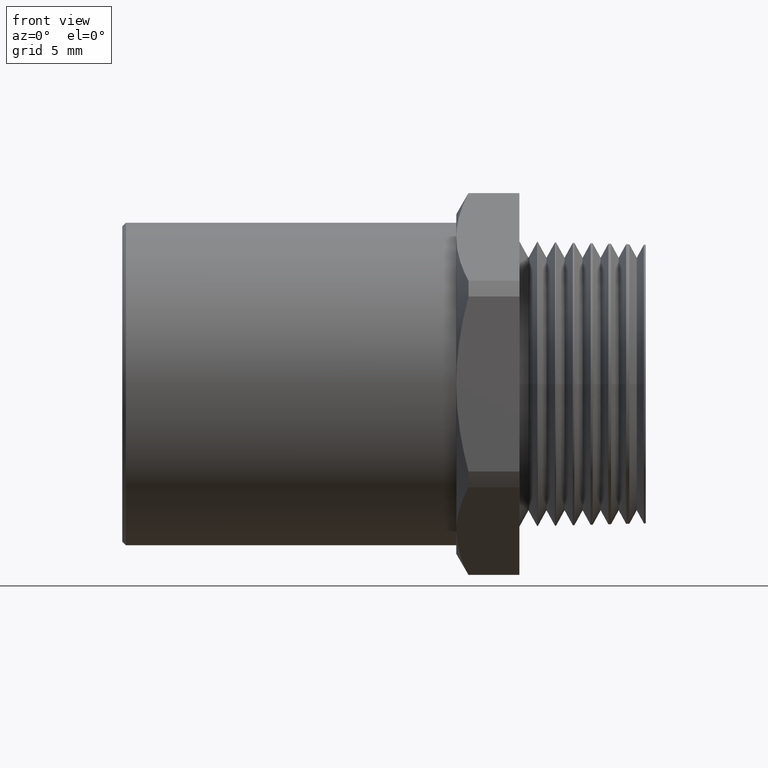
[diagram: clean part render]
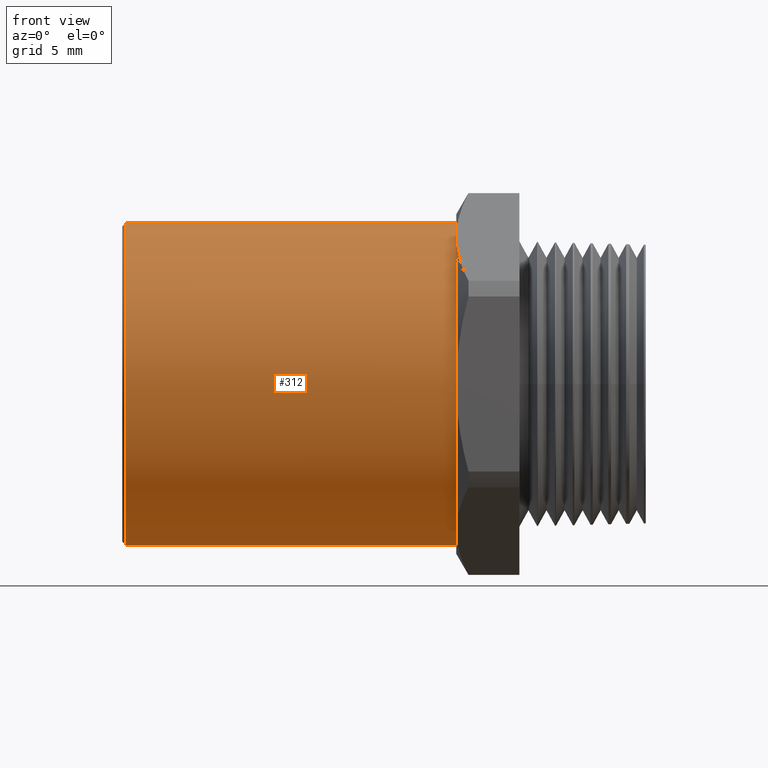
[diagram: same view with one face highlighted and labeled with its STEP entity id]
A machine part, front view. The second image highlights one B-rep face of the part: STEP entity #312.
In plain terms, the highlighted cylindrical surface (partial cylindrical patch) has radius 11.3411 mm, axis along (-1, 0, 0).
Its self-contained STEP definition (entity closure, byte-faithful):
#175 = EDGE_CURVE ( 'NONE', #2269, #2271, #733, .T. ) ;
#176 = ORIENTED_EDGE ( 'NONE', *, *, #175, .T. ) ;
#238 = EDGE_CURVE ( 'NONE', #2178, #1972, #862, .T. ) ;
#312 = ADVANCED_FACE ( 'NONE', ( #987 ), #986, .T. ) ;
#313 = EDGE_LOOP ( 'NONE', ( #314, #315, #316, #176 ) ) ;
#314 = ORIENTED_EDGE ( 'NONE', *, *, #2187, .F. ) ;
#315 = ORIENTED_EDGE ( 'NONE', *, *, #238, .T. ) ;
#316 = ORIENTED_EDGE ( 'NONE', *, *, #2188, .T. ) ;
#729 = DIRECTION ( 'NONE',  ( 0.0000000000000000000, 0.0000000000000000000, -1.000000000000000000 ) ) ;
#730 = DIRECTION ( 'NONE',  ( 1.000000000000000000, 0.0000000000000000000, 0.0000000000000000000 ) ) ;
#731 = CARTESIAN_POINT ( 'NONE',  ( -1.439999999999999900, 0.0000000000000000000, 0.0000000000000000000 ) ) ;
#732 = AXIS2_PLACEMENT_3D ( 'NONE', #731, #730, #729 ) ;
#733 = CIRCLE ( 'NONE', #732, 0.4465000000000000100 ) ;
#858 = DIRECTION ( 'NONE',  ( 0.0000000000000000000, 0.0000000000000000000, 1.000000000000000000 ) ) ;
#859 = DIRECTION ( 'NONE',  ( -1.000000000000000000, 0.0000000000000000000, 0.0000000000000000000 ) ) ;
#860 = CARTESIAN_POINT ( 'NONE',  ( -0.5249999999999999100, 0.0000000000000000000, 0.0000000000000000000 ) ) ;
#861 = AXIS2_PLACEMENT_3D ( 'NONE', #860, #859, #858 ) ;
#862 = CIRCLE ( 'NONE', #861, 0.4465000000000001200 ) ;
#982 = AXIS2_PLACEMENT_3D ( 'NONE', #984, #983, #1028 ) ;
#983 = DIRECTION ( 'NONE',  ( -1.000000000000000000, 0.0000000000000000000, 0.0000000000000000000 ) ) ;
#984 = CARTESIAN_POINT ( 'NONE',  ( -0.5911096051061856000, 0.0000000000000000000, 0.0000000000000000000 ) ) ;
#986 = CYLINDRICAL_SURFACE ( 'NONE', #982, 0.4465000000000000100 ) ;
#987 = FACE_OUTER_BOUND ( 'NONE', #313, .T. ) ;
#1028 = DIRECTION ( 'NONE',  ( 0.0000000000000000000, 0.0000000000000000000, 1.000000000000000000 ) ) ;
#1152 = CARTESIAN_POINT ( 'NONE',  ( -0.5249999999999999100, 0.0000000000000000000, 0.4465000000000001200 ) ) ;
#1407 = LINE ( 'NONE', #1413, #1469 ) ;
#1413 = CARTESIAN_POINT ( 'NONE',  ( -0.5911096051061856000, 5.468047958192932300E-017, -0.4465000000000000100 ) ) ;
#1414 = CARTESIAN_POINT ( 'NONE',  ( -0.5249999999999999100, 5.468047958192934100E-017, -0.4465000000000000600 ) ) ;
#1464 = DIRECTION ( 'NONE',  ( -1.000000000000000000, 0.0000000000000000000, 0.0000000000000000000 ) ) ;
#1465 = VECTOR ( 'NONE', #1464, 39.37007874015748100 ) ;
#1466 = CARTESIAN_POINT ( 'NONE',  ( -0.5911096051061856000, 0.0000000000000000000, 0.4465000000000000100 ) ) ;
#1467 = LINE ( 'NONE', #1466, #1465 ) ;
#1468 = DIRECTION ( 'NONE',  ( -1.000000000000000000, 0.0000000000000000000, 0.0000000000000000000 ) ) ;
#1469 = VECTOR ( 'NONE', #1468, 39.37007874015748100 ) ;
#1575 = CARTESIAN_POINT ( 'NONE',  ( -1.439999999999999900, 5.468047958192932300E-017, -0.4465000000000000100 ) ) ;
#1576 = CARTESIAN_POINT ( 'NONE',  ( -1.439999999999999900, 0.0000000000000000000, 0.4465000000000000100 ) ) ;
#1972 = VERTEX_POINT ( 'NONE', #1152 ) ;
#2178 = VERTEX_POINT ( 'NONE', #1414 ) ;
#2187 = EDGE_CURVE ( 'NONE', #2178, #2271, #1407, .T. ) ;
#2188 = EDGE_CURVE ( 'NONE', #1972, #2269, #1467, .T. ) ;
#2269 = VERTEX_POINT ( 'NONE', #1576 ) ;
#2271 = VERTEX_POINT ( 'NONE', #1575 ) ;